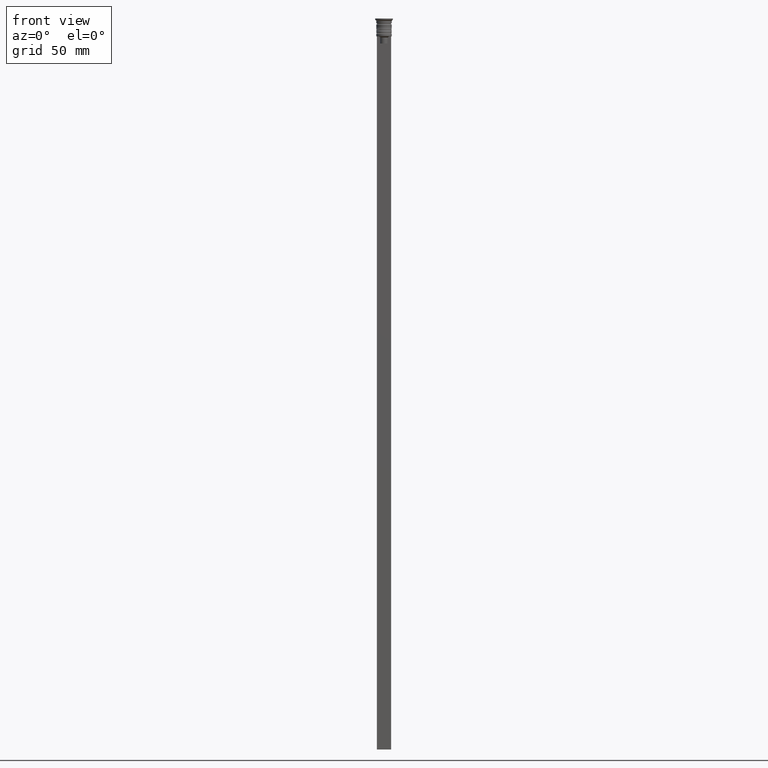
[diagram: clean part render]
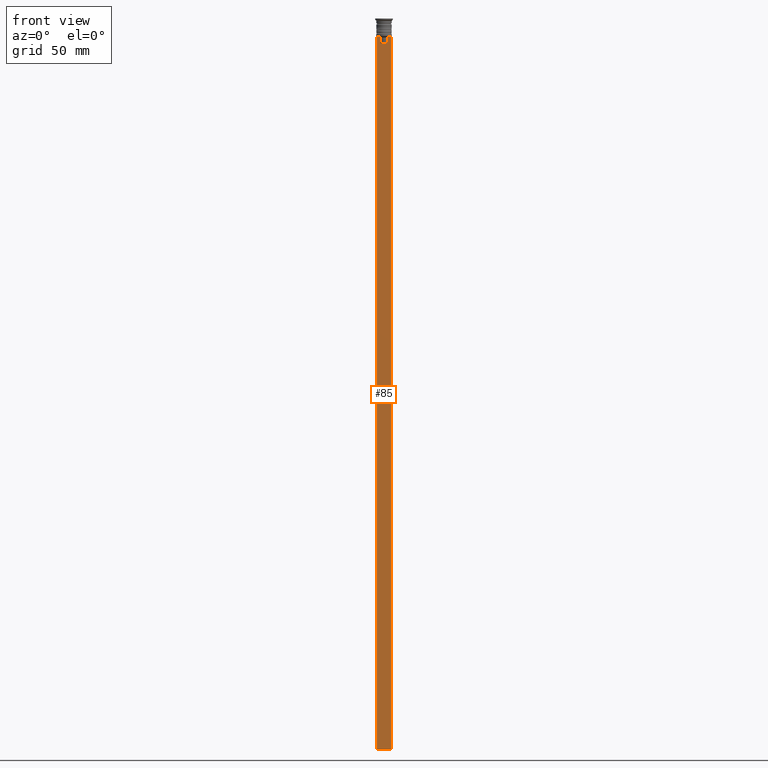
[diagram: same view with one face highlighted and labeled with its STEP entity id]
A machine part, front view. The second image highlights one B-rep face of the part: STEP entity #85.
In plain terms, the highlighted planar face has unit normal (0, -1, -0).
Its self-contained STEP definition (entity closure, byte-faithful):
#1 = CARTESIAN_POINT ( 'NONE',  ( -1.612451549659713601, -0.3500000000000000333, -8.000000000000000000 ) ) ;
#27 = VECTOR ( 'NONE', #353, 1000.000000000000000 ) ;
#29 = DIRECTION ( 'NONE',  ( -0.000000000000000000, -0.000000000000000000, 1.000000000000000000 ) ) ;
#49 = ORIENTED_EDGE ( 'NONE', *, *, #1862, .F. ) ;
#53 = VECTOR ( 'NONE', #554, 1000.000000000000000 ) ;
#71 = VERTEX_POINT ( 'NONE', #1915 ) ;
#85 = ADVANCED_FACE ( 'NONE', ( #1082 ), #790, .T. ) ;
#97 = VERTEX_POINT ( 'NONE', #1460 ) ;
#102 = DIRECTION ( 'NONE',  ( 0.000000000000000000, 0.000000000000000000, -1.000000000000000000 ) ) ;
#160 = VERTEX_POINT ( 'NONE', #2135 ) ;
#163 = CARTESIAN_POINT ( 'NONE',  ( 1.952040775369266346, -0.3500000000000000333, -7.667021484535463394 ) ) ;
#276 = EDGE_CURVE ( 'NONE', #97, #1506, #1053, .T. ) ;
#277 = CARTESIAN_POINT ( 'NONE',  ( -1.782527878033862478, -0.3500000000000000333, -7.833794036819864637 ) ) ;
#312 = CARTESIAN_POINT ( 'NONE',  ( 1.612451549659713601, -0.3500000000000000333, -8.000000000000000000 ) ) ;
#336 = CARTESIAN_POINT ( 'NONE',  ( 1.782523989086206795, -0.3500000000000000333, -7.833797837268088315 ) ) ;
#338 = ORIENTED_EDGE ( 'NONE', *, *, #1758, .F. ) ;
#353 = DIRECTION ( 'NONE',  ( 0.000000000000000000, 0.000000000000000000, -1.000000000000000000 ) ) ;
#389 = LINE ( 'NONE', #1229, #27 ) ;
#406 = CARTESIAN_POINT ( 'NONE',  ( -3.000000000000004441, -0.3500000000000000333, -307.5000000000000000 ) ) ;
#438 = CARTESIAN_POINT ( 'NONE',  ( -1.952043732028444500, -0.3500000000000000333, -7.667018567316270961 ) ) ;
#455 = EDGE_CURVE ( 'NONE', #1506, #2015, #653, .T. ) ;
#523 = LINE ( 'NONE', #1725, #53 ) ;
#524 = VERTEX_POINT ( 'NONE', #1258 ) ;
#554 = DIRECTION ( 'NONE',  ( 1.000000000000000000, 0.000000000000000000, 0.000000000000000000 ) ) ;
#625 = CARTESIAN_POINT ( 'NONE',  ( -1.612451549659713601, -0.3500000000000000333, 0.000000000000000000 ) ) ;
#652 = EDGE_CURVE ( 'NONE', #828, #1344, #2132, .T. ) ;
#653 = B_SPLINE_CURVE_WITH_KNOTS ( 'NONE', 3,
 ( #989, #336, #163, #839 ),
 .UNSPECIFIED., .F., .F.,
 ( 4, 4 ),
 ( 0.008600796474521228696, 0.009317962624906526645 ),
 .UNSPECIFIED. ) ;
#669 = DIRECTION ( 'NONE',  ( -1.000000000000000000, 0.000000000000000000, 0.000000000000000000 ) ) ;
#790 = PLANE ( 'NONE',  #1130 ) ;
#819 = VECTOR ( 'NONE', #1110, 1000.000000000000000 ) ;
#828 = VERTEX_POINT ( 'NONE', #1192 ) ;
#839 = CARTESIAN_POINT ( 'NONE',  ( 2.121320343559647270, -0.3500000000000000333, -7.500000000000000000 ) ) ;
#878 = ORIENTED_EDGE ( 'NONE', *, *, #1777, .F. ) ;
#919 = EDGE_CURVE ( 'NONE', #1978, #1850, #389, .T. ) ;
#959 = LINE ( 'NONE', #1677, #1564 ) ;
#989 = CARTESIAN_POINT ( 'NONE',  ( 1.612451549659713601, -0.3500000000000000333, -8.000000000000000000 ) ) ;
#1015 = LINE ( 'NONE', #2030, #1594 ) ;
#1022 = ORIENTED_EDGE ( 'NONE', *, *, #455, .F. ) ;
#1026 = DIRECTION ( 'NONE',  ( 1.000000000000000000, 0.000000000000000000, 0.000000000000000000 ) ) ;
#1027 = ORIENTED_EDGE ( 'NONE', *, *, #652, .F. ) ;
#1045 = ORIENTED_EDGE ( 'NONE', *, *, #919, .T. ) ;
#1053 = LINE ( 'NONE', #1726, #1831 ) ;
#1067 = ORIENTED_EDGE ( 'NONE', *, *, #276, .F. ) ;
#1082 = FACE_OUTER_BOUND ( 'NONE', #1751, .T. ) ;
#1110 = DIRECTION ( 'NONE',  ( 0.000000000000000000, 0.000000000000000000, -1.000000000000000000 ) ) ;
#1130 = AXIS2_PLACEMENT_3D ( 'NONE', #1605, #2104, #102 ) ;
#1165 = CARTESIAN_POINT ( 'NONE',  ( 2.999999999999995559, -0.3500000000000000333, -307.5000000000000000 ) ) ;
#1192 = CARTESIAN_POINT ( 'NONE',  ( -2.121320343559647270, -0.3500000000000000333, -7.500000000000000000 ) ) ;
#1200 = VECTOR ( 'NONE', #669, 1000.000000000000000 ) ;
#1229 = CARTESIAN_POINT ( 'NONE',  ( -3.000000000000004441, -0.3500000000000000333, -1.459304675784417915 ) ) ;
#1258 = CARTESIAN_POINT ( 'NONE',  ( 2.999999999999995559, -0.3500000000000000333, -7.500000000000000000 ) ) ;
#1268 = ORIENTED_EDGE ( 'NONE', *, *, #1550, .F. ) ;
#1328 = CARTESIAN_POINT ( 'NONE',  ( 2.121320343559647270, -0.3500000000000000333, -7.500000000000000000 ) ) ;
#1344 = VERTEX_POINT ( 'NONE', #1385 ) ;
#1348 = ORIENTED_EDGE ( 'NONE', *, *, #1574, .F. ) ;
#1352 = DIRECTION ( 'NONE',  ( 1.000000000000000000, 0.000000000000000000, 0.000000000000000000 ) ) ;
#1385 = CARTESIAN_POINT ( 'NONE',  ( -1.612451549659713601, -0.3500000000000000333, -8.000000000000000000 ) ) ;
#1460 = CARTESIAN_POINT ( 'NONE',  ( 1.612451549659713601, -0.3500000000000000333, -10.49999999999999822 ) ) ;
#1478 = LINE ( 'NONE', #1165, #1200 ) ;
#1506 = VERTEX_POINT ( 'NONE', #312 ) ;
#1550 = EDGE_CURVE ( 'NONE', #1344, #71, #1982, .T. ) ;
#1564 = VECTOR ( 'NONE', #1352, 1000.000000000000000 ) ;
#1574 = EDGE_CURVE ( 'NONE', #160, #1850, #1478, .T. ) ;
#1588 = LINE ( 'NONE', #1911, #819 ) ;
#1594 = VECTOR ( 'NONE', #1026, 1000.000000000000000 ) ;
#1605 = CARTESIAN_POINT ( 'NONE',  ( 2.999999999999995559, -0.3500000000000000333, -1.459304675784417915 ) ) ;
#1611 = EDGE_CURVE ( 'NONE', #1978, #828, #959, .T. ) ;
#1666 = DIRECTION ( 'NONE',  ( 0.000000000000000000, 0.000000000000000000, -1.000000000000000000 ) ) ;
#1677 = CARTESIAN_POINT ( 'NONE',  ( 2.999999999999995559, -0.3500000000000000333, -7.500000000000000000 ) ) ;
#1700 = VECTOR ( 'NONE', #1666, 1000.000000000000000 ) ;
#1725 = CARTESIAN_POINT ( 'NONE',  ( 0.000000000000000000, -0.3500000000000000333, -10.49999999999999822 ) ) ;
#1726 = CARTESIAN_POINT ( 'NONE',  ( 1.612451549659713601, -0.3500000000000000333, 0.000000000000000000 ) ) ;
#1743 = ORIENTED_EDGE ( 'NONE', *, *, #1611, .F. ) ;
#1751 = EDGE_LOOP ( 'NONE', ( #1027, #1743, #1045, #1348, #49, #878, #1022, #1067, #338, #1268 ) ) ;
#1758 = EDGE_CURVE ( 'NONE', #71, #97, #523, .T. ) ;
#1776 = CARTESIAN_POINT ( 'NONE',  ( -3.000000000000004441, -0.3500000000000000333, -7.500000000000000000 ) ) ;
#1777 = EDGE_CURVE ( 'NONE', #2015, #524, #1015, .T. ) ;
#1831 = VECTOR ( 'NONE', #29, 1000.000000000000000 ) ;
#1850 = VERTEX_POINT ( 'NONE', #406 ) ;
#1862 = EDGE_CURVE ( 'NONE', #524, #160, #1588, .T. ) ;
#1911 = CARTESIAN_POINT ( 'NONE',  ( 2.999999999999995559, -0.3500000000000000333, -1.459304675784417915 ) ) ;
#1915 = CARTESIAN_POINT ( 'NONE',  ( -1.612451549659713601, -0.3500000000000000333, -10.49999999999999822 ) ) ;
#1959 = CARTESIAN_POINT ( 'NONE',  ( -2.121320343559647270, -0.3500000000000000333, -7.500000000000000000 ) ) ;
#1978 = VERTEX_POINT ( 'NONE', #1776 ) ;
#1982 = LINE ( 'NONE', #625, #1700 ) ;
#2015 = VERTEX_POINT ( 'NONE', #1328 ) ;
#2030 = CARTESIAN_POINT ( 'NONE',  ( 2.999999999999995559, -0.3500000000000000333, -7.500000000000000000 ) ) ;
#2104 = DIRECTION ( 'NONE',  ( 0.000000000000000000, -1.000000000000000000, -0.000000000000000000 ) ) ;
#2132 = B_SPLINE_CURVE_WITH_KNOTS ( 'NONE', 3,
 ( #1959, #438, #277, #1 ),
 .UNSPECIFIED., .F., .F.,
 ( 4, 4 ),
 ( 0.003684653461239337929, 0.004398058763641257696 ),
 .UNSPECIFIED. ) ;
#2135 = CARTESIAN_POINT ( 'NONE',  ( 2.999999999999995559, -0.3500000000000000333, -307.5000000000000000 ) ) ;